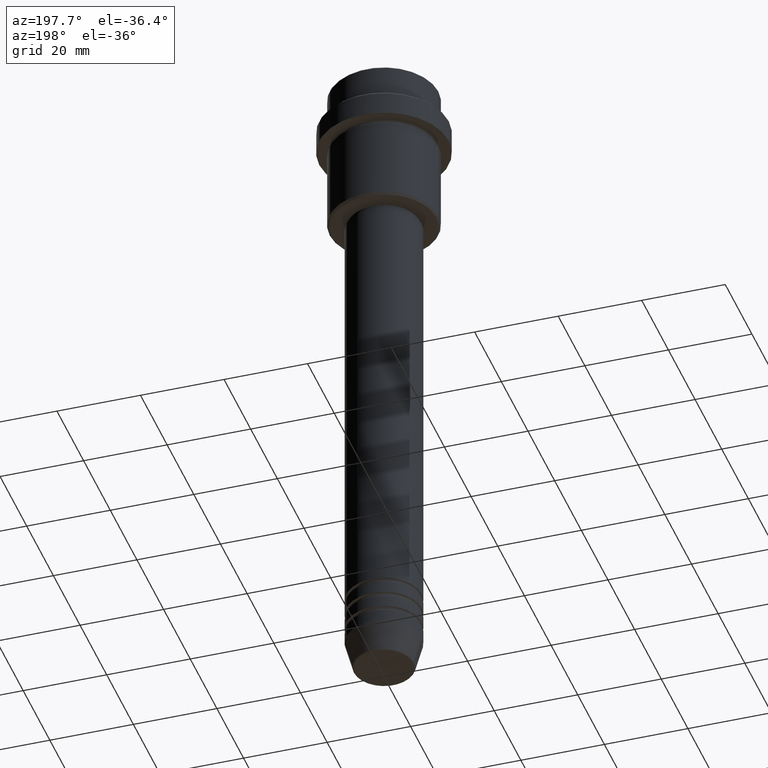
[diagram: clean part render]
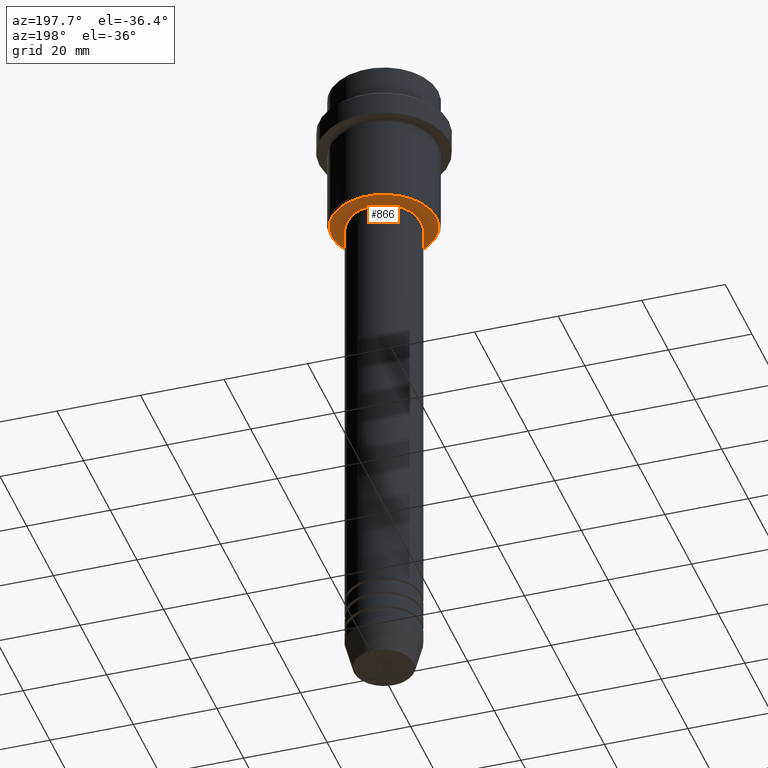
[diagram: same view with one face highlighted and labeled with its STEP entity id]
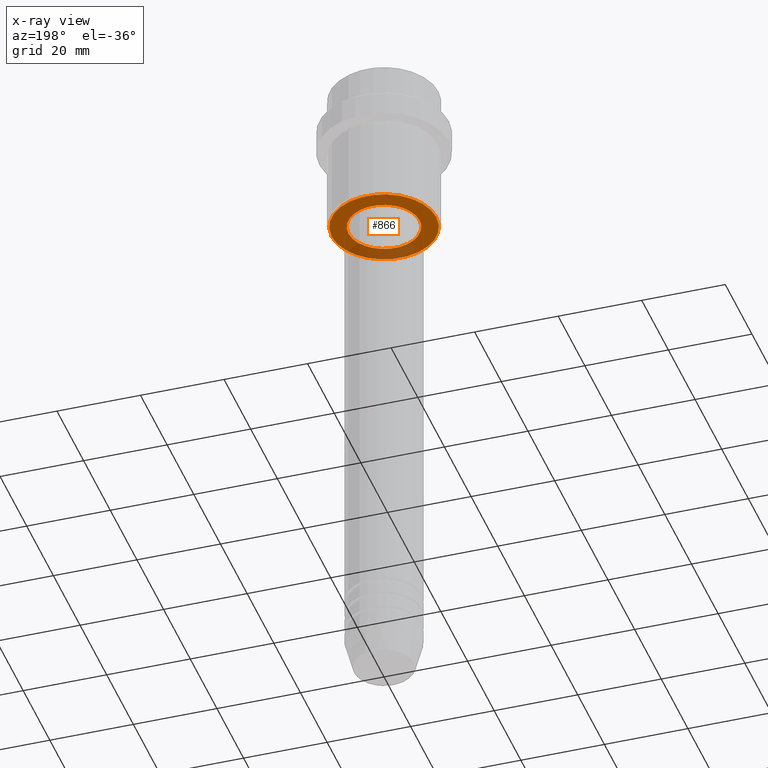
[diagram: x-ray of the same camera — body ghosted, the highlighted face saturated]
A machine part, auxiliary view. The second image highlights one B-rep face of the part: STEP entity #866.
The next image is the same camera in x-ray: the body ghosted, the highlighted face saturated — about 23% of this face is hidden behind the body in this view.
In plain terms, the highlighted planar face has unit normal (0, 0, -1).
Its self-contained STEP definition (entity closure, byte-faithful):
#23 = DIRECTION ( 'NONE',  ( 1.000000000000000000, 0.000000000000000000, 0.000000000000000000 ) ) ;
#32 = CIRCLE ( 'NONE', #488, 8.499999999999994671 ) ;
#121 = EDGE_CURVE ( 'NONE', #688, #566, #509, .T. ) ;
#131 = DIRECTION ( 'NONE',  ( -0.000000000000000000, -0.000000000000000000, 1.000000000000000000 ) ) ;
#181 = ORIENTED_EDGE ( 'NONE', *, *, #241, .T. ) ;
#207 = CARTESIAN_POINT ( 'NONE',  ( 12.49999999999998401, 0.000000000000000000, -35.99999999999999289 ) ) ;
#241 = EDGE_CURVE ( 'NONE', #675, #1164, #32, .T. ) ;
#246 = AXIS2_PLACEMENT_3D ( 'NONE', #1228, #788, #1222 ) ;
#261 = ORIENTED_EDGE ( 'NONE', *, *, #121, .T. ) ;
#348 = ORIENTED_EDGE ( 'NONE', *, *, #1231, .T. ) ;
#385 = CIRCLE ( 'NONE', #427, 8.499999999999994671 ) ;
#421 = CARTESIAN_POINT ( 'NONE',  ( 0.000000000000000000, 0.000000000000000000, -35.99999999999999289 ) ) ;
#427 = AXIS2_PLACEMENT_3D ( 'NONE', #786, #885, #23 ) ;
#468 = DIRECTION ( 'NONE',  ( 0.000000000000000000, 0.000000000000000000, -1.000000000000000000 ) ) ;
#488 = AXIS2_PLACEMENT_3D ( 'NONE', #1336, #131, #1007 ) ;
#509 = CIRCLE ( 'NONE', #574, 12.49999999999998401 ) ;
#514 = AXIS2_PLACEMENT_3D ( 'NONE', #523, #962, #1397 ) ;
#523 = CARTESIAN_POINT ( 'NONE',  ( 0.000000000000000000, 0.000000000000000000, -35.99999999999999289 ) ) ;
#555 = EDGE_CURVE ( 'NONE', #566, #688, #716, .T. ) ;
#563 = EDGE_LOOP ( 'NONE', ( #882, #261 ) ) ;
#566 = VERTEX_POINT ( 'NONE', #207 ) ;
#574 = AXIS2_PLACEMENT_3D ( 'NONE', #421, #468, #684 ) ;
#675 = VERTEX_POINT ( 'NONE', #753 ) ;
#684 = DIRECTION ( 'NONE',  ( -1.000000000000000000, 0.000000000000000000, 0.000000000000000000 ) ) ;
#688 = VERTEX_POINT ( 'NONE', #1083 ) ;
#716 = CIRCLE ( 'NONE', #514, 12.49999999999998401 ) ;
#753 = CARTESIAN_POINT ( 'NONE',  ( -8.499999999999994671, 1.040949779275249745E-15, -35.99999999999999289 ) ) ;
#786 = CARTESIAN_POINT ( 'NONE',  ( 0.000000000000000000, 0.000000000000000000, -35.99999999999999289 ) ) ;
#788 = DIRECTION ( 'NONE',  ( 0.000000000000000000, 0.000000000000000000, -1.000000000000000000 ) ) ;
#795 = PLANE ( 'NONE',  #246 ) ;
#866 = ADVANCED_FACE ( 'NONE', ( #1010, #1241 ), #795, .T. ) ;
#882 = ORIENTED_EDGE ( 'NONE', *, *, #555, .T. ) ;
#885 = DIRECTION ( 'NONE',  ( -0.000000000000000000, -0.000000000000000000, 1.000000000000000000 ) ) ;
#962 = DIRECTION ( 'NONE',  ( 0.000000000000000000, 0.000000000000000000, -1.000000000000000000 ) ) ;
#1007 = DIRECTION ( 'NONE',  ( 1.000000000000000000, 0.000000000000000000, 0.000000000000000000 ) ) ;
#1010 = FACE_OUTER_BOUND ( 'NONE', #563, .T. ) ;
#1071 = CARTESIAN_POINT ( 'NONE',  ( 8.499999999999994671, 0.000000000000000000, -35.99999999999999289 ) ) ;
#1083 = CARTESIAN_POINT ( 'NONE',  ( -12.49999999999998401, 1.561424668912874125E-15, -35.99999999999999289 ) ) ;
#1164 = VERTEX_POINT ( 'NONE', #1071 ) ;
#1222 = DIRECTION ( 'NONE',  ( -1.000000000000000000, 0.000000000000000000, -0.000000000000000000 ) ) ;
#1228 = CARTESIAN_POINT ( 'NONE',  ( 0.000000000000000000, 13.00000000000000000, -35.99999999999999289 ) ) ;
#1231 = EDGE_CURVE ( 'NONE', #1164, #675, #385, .T. ) ;
#1241 = FACE_BOUND ( 'NONE', #1257, .T. ) ;
#1257 = EDGE_LOOP ( 'NONE', ( #348, #181 ) ) ;
#1336 = CARTESIAN_POINT ( 'NONE',  ( 0.000000000000000000, 0.000000000000000000, -35.99999999999999289 ) ) ;
#1397 = DIRECTION ( 'NONE',  ( -1.000000000000000000, 0.000000000000000000, 0.000000000000000000 ) ) ;